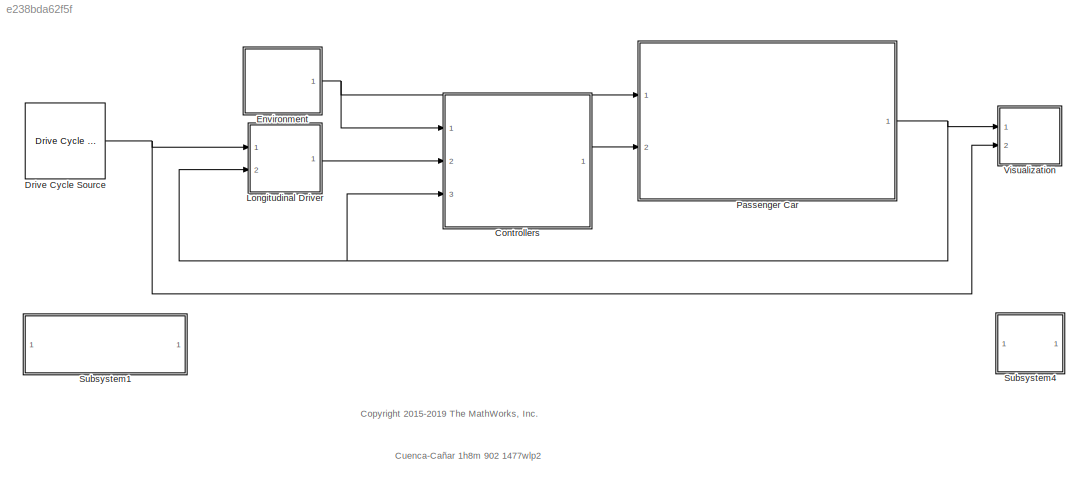
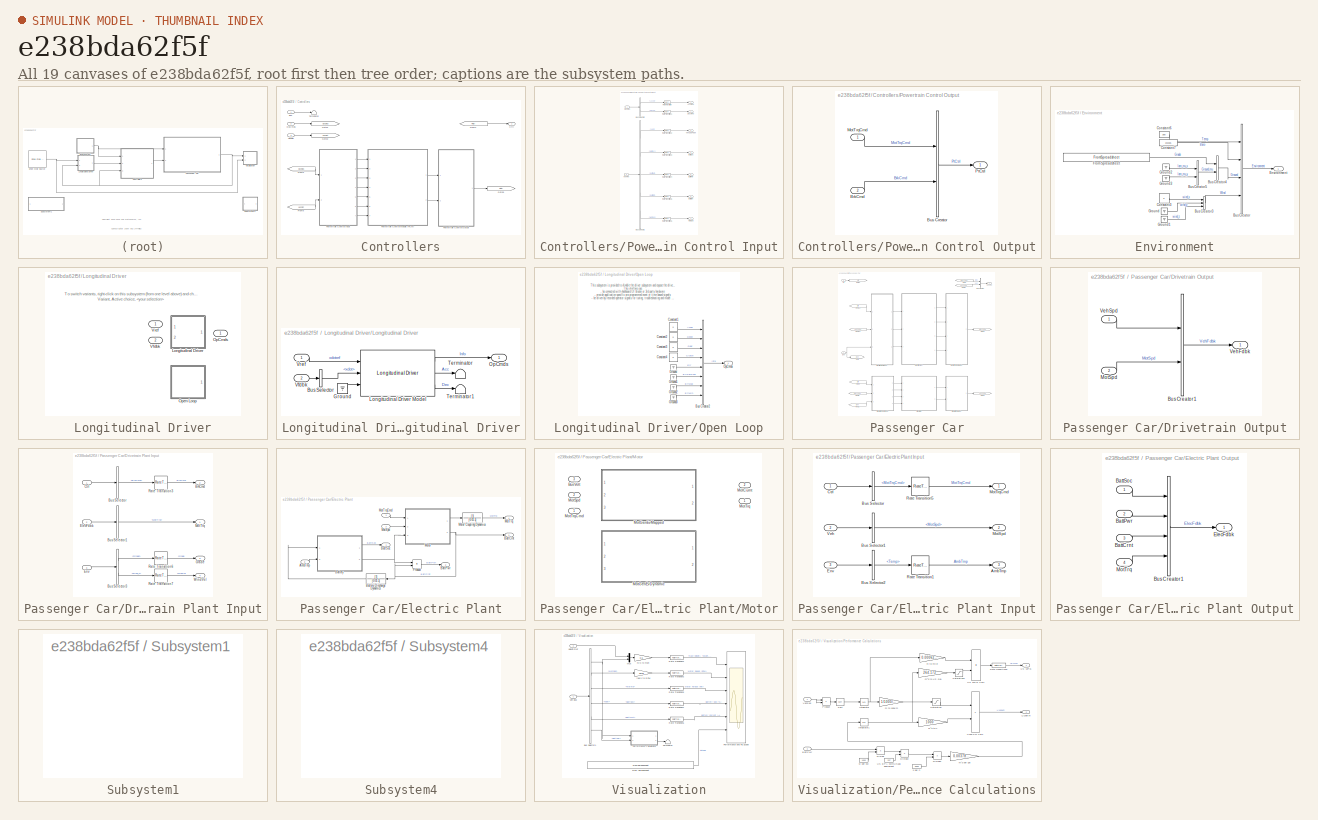
[diagram: thumbnail index - all 19 canvases of the model, root first then tree order]
MODEL slx_e238bda62f5f
KIND model
CONFIG AbsTol = auto
CONFIG EnableMultiTasking = off
CONFIG FixedStep = auto
CONFIG MaxStep = auto
CONFIG MinStep = auto
CONFIG RelTol = 1e-3
CONFIG SampleTimeConstraint = Unconstrained
CONFIG Solver = VariableStepAuto
CONFIG SolverName = VariableStepAuto
CONFIG StartTime = 0.0
CONFIG StopTime = 10.0
BLOCK [SubSystem] Controllers
  Ports = [3, 1]
  RequestExecContextInheritance = off
BLOCK [Outport] Controllers/Ctrl
  VectorParamsAs1DForOutWhenUnconnected = off
BLOCK [Inport] Controllers/Env
BLOCK [From] Controllers/From2
  GotoTag = PtCtrl
BLOCK [From] Controllers/From5
  GotoTag = OpCmds
BLOCK [From] Controllers/From6
  GotoTag = VehPlnt
BLOCK [Goto] Controllers/Goto1
  GotoTag = OpCmds
BLOCK [Goto] Controllers/Goto2
  GotoTag = VehPlnt
BLOCK [Goto] Controllers/Goto9
  GotoTag = PtCtrl
BLOCK [Inport] Controllers/OpCmds
  Port = 2
BLOCK [SubSystem] Controllers/Powertrain Control Input
  Ports = [2, 7]
  RequestExecContextInheritance = off
BLOCK [Outport] Controllers/Powertrain Control Input/AccelPdl
  VectorParamsAs1DForOutWhenUnconnected = off
BLOCK [Outport] Controllers/Powertrain Control Input/BattCrnt
  Port = 6
  VectorParamsAs1DForOutWhenUnconnected = off
BLOCK [Outport] Controllers/Powertrain Control Input/BattPwr
  Port = 5
  VectorParamsAs1DForOutWhenUnconnected = off
BLOCK [Outport] Controllers/Powertrain Control Input/BattSoc
  Port = 4
  VectorParamsAs1DForOutWhenUnconnected = off
BLOCK [BusSelector] Controllers/Powertrain Control Input/Bus Selector1
  OutputSignals = Veh.xdot,Elec.BattSoc,Elec.BattPwr,Elec.BattCrnt,Veh.MotSpd
  Ports = [1, 5]
BLOCK [BusSelector] Controllers/Powertrain Control Input/Bus Selector2
  OutputSignals = Accel,Decel
  Ports = [1, 2]
BLOCK [Outport] Controllers/Powertrain Control Input/DecelPdl
  Port = 2
  VectorParamsAs1DForOutWhenUnconnected = off
BLOCK [Outport] Controllers/Powertrain Control Input/MotSpd
  Port = 7
  VectorParamsAs1DForOutWhenUnconnected = off
BLOCK [Inport] Controllers/Powertrain Control Input/OpCmds
BLOCK [RateTransition] Controllers/Powertrain Control Input/Rate Transition
  Deterministic = off
BLOCK [RateTransition] Controllers/Powertrain Control Input/Rate Transition1
  Deterministic = off
BLOCK [RateTransition] Controllers/Powertrain Control Input/Rate Transition2
  Deterministic = off
BLOCK [RateTransition] Controllers/Powertrain Control Input/Rate Transition3
  Deterministic = off
BLOCK [RateTransition] Controllers/Powertrain Control Input/Rate Transition4
  Deterministic = off
BLOCK [RateTransition] Controllers/Powertrain Control Input/Rate Transition5
  Deterministic = off
BLOCK [RateTransition] Controllers/Powertrain Control Input/Rate Transition6
  Deterministic = off
BLOCK [Inport] Controllers/Powertrain Control Input/VehPlnt
  Port = 2
BLOCK [Outport] Controllers/Powertrain Control Input/VehSpdFdbk
  Port = 3
  VectorParamsAs1DForOutWhenUnconnected = off
BLOCK [ModelReference] Controllers/Powertrain Control Module (PCM)
  ModelNameDialog = EvPowertrainController.slx
  ModelReferenceVersion = 1.415
  Ports = [7, 2]
BLOCK [SubSystem] Controllers/Powertrain Control Output
  Ports = [2, 1]
  RequestExecContextInheritance = off
BLOCK [Inport] Controllers/Powertrain Control Output/BrkCmd
  Port = 2
BLOCK [BusCreator] Controllers/Powertrain Control Output/Bus Creator
  DisplayOption = bar
  InheritFromInputs = on
  Inputs = 2
  Ports = [2, 1]
BLOCK [Inport] Controllers/Powertrain Control Output/MotTrqCmd
BLOCK [Outport] Controllers/Powertrain Control Output/PtCtrl
  VectorParamsAs1DForOutWhenUnconnected = off
BLOCK [Terminator] Controllers/Terminator
BLOCK [Inport] Controllers/VehPlnt
  Port = 3
BLOCK [Reference] Drive Cycle Source  REF=autolibshared/Drive Cycle Source
  AttributesFormatString = %<cycleVar> (%<tfinal>)
  Ports = [0, 1]
  SourceBlock = autolibshared/Drive Cycle Source
  SourceProductBaseCode = PW,MT,VE,VP
  SourceType = Drive Cycle Source
BLOCK [SubSystem] Environment
  Ports = [0, 1]
  RequestExecContextInheritance = off
BLOCK [BusCreator] Environment/Bus Creator
  DisplayOption = bar
  InheritFromInputs = on
  Inputs = 4
  Ports = [4, 1]
BLOCK [BusCreator] Environment/Bus Creator3
  DisplayOption = bar
  InheritFromInputs = on
  Inputs = 3
  Ports = [3, 1]
BLOCK [BusCreator] Environment/Bus Creator4
  DisplayOption = bar
  InheritFromInputs = on
  Inputs = 2
  Ports = [2, 1]
BLOCK [BusCreator] Environment/Bus Creator5
  DisplayOption = bar
  InheritFromInputs = on
  Inputs = 2
  Ports = [2, 1]
BLOCK [Constant] Environment/Constant3
  Value = 0
BLOCK [Constant] Environment/Constant6
  Value = 300
BLOCK [Constant] Environment/Constant7
  Value = 101325
BLOCK [Outport] Environment/Environment
  VectorParamsAs1DForOutWhenUnconnected = off
BLOCK [FromSpreadsheet] Environment/From Spreadsheet
  FileName = <userpath>\Desktop\test\fromstaisabeltocentrosur.xlsx
  Ports = [0, 1]
BLOCK [Ground] Environment/Ground
BLOCK [Ground] Environment/Ground1
BLOCK [Ground] Environment/Ground2
BLOCK [Ground] Environment/Ground3
BLOCK [SubSystem] Longitudinal Driver
  LabelModeActiveChoice = 0
  Ports = [2, 1]
  RequestExecContextInheritance = off
  Variant = on
  VariantControl = Variant1
  VariantControlMode = Label
BLOCK [Outport] Longitudinal Driver/ OpCmds
  VectorParamsAs1DForOutWhenUnconnected = off
BLOCK [SubSystem] Longitudinal Driver/Longitudinal Driver
  Ports = [2, 1]
  RequestExecContextInheritance = off
  VariantControl = 0
BLOCK [BusSelector] Longitudinal Driver/Longitudinal Driver/Bus Selector
  OutputSignals = Veh.xdot
  Ports = [1, 1]
BLOCK [Ground] Longitudinal Driver/Longitudinal Driver/Ground
BLOCK [Reference] Longitudinal Driver/Longitudinal Driver/Longitudinal Driver Model  REF=autolibshared/Longitudinal Driver
  Ports = [3, 3]
  SourceBlock = autolibshared/Longitudinal Driver
  SourceProductBaseCode = PW,MT,VE,VP
  SourceType = Longitudinal Driver
BLOCK [Outport] Longitudinal Driver/Longitudinal Driver/OpCmds
  VectorParamsAs1DForOutWhenUnconnected = off
BLOCK [Terminator] Longitudinal Driver/Longitudinal Driver/Terminator
BLOCK [Terminator] Longitudinal Driver/Longitudinal Driver/Terminator1
BLOCK [Inport] Longitudinal Driver/Longitudinal Driver/Vfdbk
  Port = 2
BLOCK [Inport] Longitudinal Driver/Longitudinal Driver/Vref
BLOCK [SubSystem] Longitudinal Driver/Open Loop
  Ports = [0, 1]
  RequestExecContextInheritance = off
  VariantControl = 1
BLOCK [BusCreator] Longitudinal Driver/Open Loop/Bus Creator2
  DisplayOption = bar
  InheritFromInputs = on
  Inputs = 8
  Ports = [8, 1]
BLOCK [Constant] Longitudinal Driver/Open Loop/Constant1
  Value = 0
BLOCK [Constant] Longitudinal Driver/Open Loop/Constant2
  Value = 0
BLOCK [Constant] Longitudinal Driver/Open Loop/Constant3
  Value = 0
BLOCK [Constant] Longitudinal Driver/Open Loop/Constant4
  Value = 0
BLOCK [Ground] Longitudinal Driver/Open Loop/Ground
BLOCK [Ground] Longitudinal Driver/Open Loop/Ground1
BLOCK [Ground] Longitudinal Driver/Open Loop/Ground2
BLOCK [Ground] Longitudinal Driver/Open Loop/Ground3
BLOCK [Outport] Longitudinal Driver/Open Loop/OpCmds
  VectorParamsAs1DForOutWhenUnconnected = off
BLOCK [Inport] Longitudinal Driver/Vfdbk 
  Port = 2
BLOCK [Inport] Longitudinal Driver/Vref 
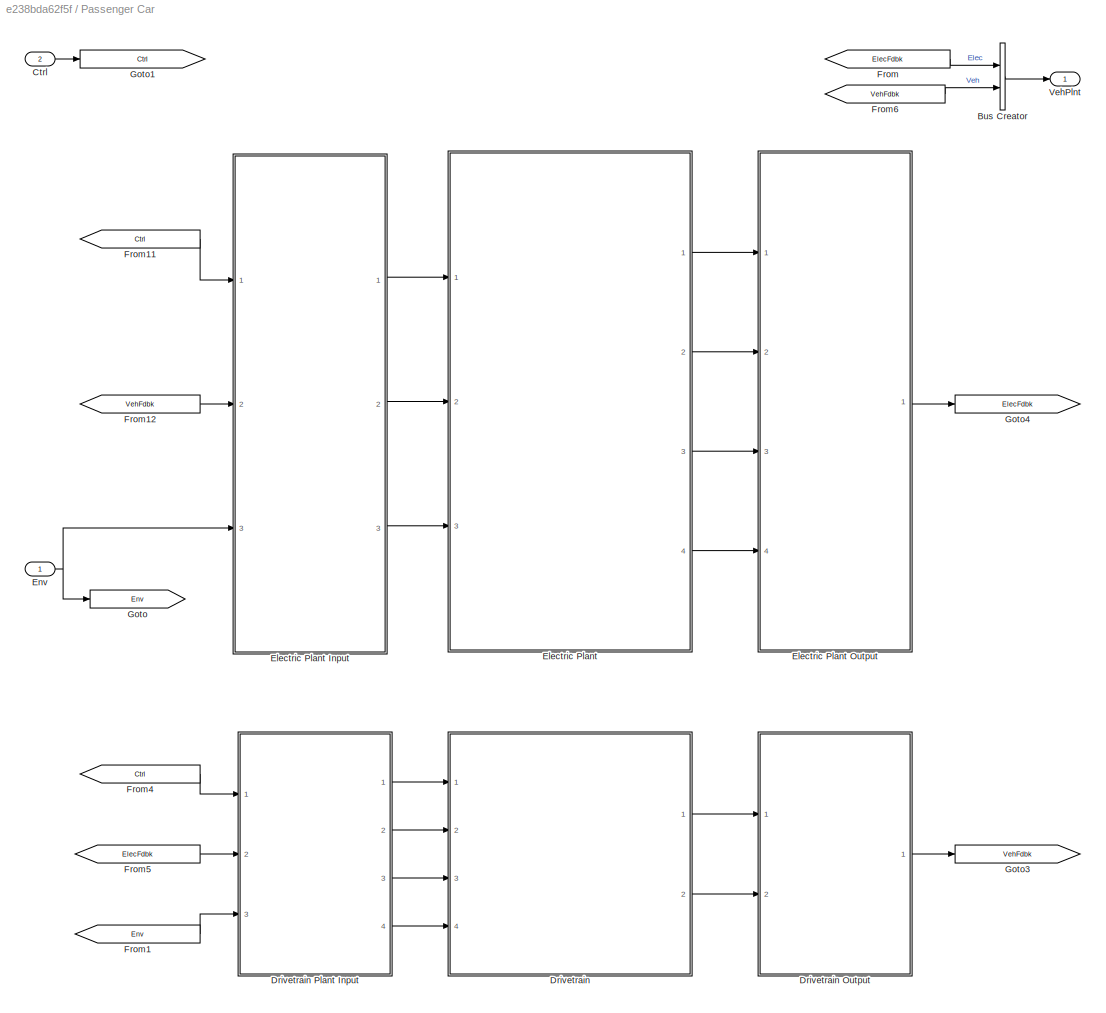
BLOCK [SubSystem] Passenger Car
  Ports = [2, 1]
  RequestExecContextInheritance = off
BLOCK [BusCreator] Passenger Car/Bus Creator
  DisplayOption = bar
  InheritFromInputs = on
  Inputs = 2
  Ports = [2, 1]
BLOCK [Inport] Passenger Car/Ctrl
  Port = 2
BLOCK [ModelReference] Passenger Car/Drivetrain
  ModelNameDialog = DrivetrainEv.slx
  ModelReferenceVersion = 1.455
  Ports = [4, 2]
BLOCK [SubSystem] Passenger Car/Drivetrain Output
  Ports = [2, 1]
  RequestExecContextInheritance = off
BLOCK [BusCreator] Passenger Car/Drivetrain Output/Bus Creator1
  DisplayOption = bar
  InheritFromInputs = on
  Inputs = 2
  Ports = [2, 1]
BLOCK [Inport] Passenger Car/Drivetrain Output/MotSpd
  Port = 2
BLOCK [Outport] Passenger Car/Drivetrain Output/VehFdbk
  VectorParamsAs1DForOutWhenUnconnected = off
BLOCK [Inport] Passenger Car/Drivetrain Output/VehSpd
BLOCK [SubSystem] Passenger Car/Drivetrain Plant Input
  Ports = [3, 4]
  RequestExecContextInheritance = off
BLOCK [Outport] Passenger Car/Drivetrain Plant Input/BrkCmd
  Port = 2
  VectorParamsAs1DForOutWhenUnconnected = off
BLOCK [BusSelector] Passenger Car/Drivetrain Plant Input/Bus Selector
  OutputSignals = BrkCmd
  Ports = [1, 1]
BLOCK [BusSelector] Passenger Car/Drivetrain Plant Input/Bus Selector1
  OutputSignals = MotTrq
  Ports = [1, 1]
BLOCK [BusSelector] Passenger Car/Drivetrain Plant Input/Bus Selector3
  OutputSignals = Ground.Grade,Wind.wind_x
  Ports = [1, 2]
BLOCK [Inport] Passenger Car/Drivetrain Plant Input/Ctrl
BLOCK [Inport] Passenger Car/Drivetrain Plant Input/ElecFdbk
  Port = 2
BLOCK [Inport] Passenger Car/Drivetrain Plant Input/Env
  Port = 3
BLOCK [Outport] Passenger Car/Drivetrain Plant Input/Grade
  Port = 3
  VectorParamsAs1DForOutWhenUnconnected = off
BLOCK [Outport] Passenger Car/Drivetrain Plant Input/MotTrq
  VectorParamsAs1DForOutWhenUnconnected = off
BLOCK [RateTransition] Passenger Car/Drivetrain Plant Input/Rate Transition3
  Deterministic = off
BLOCK [RateTransition] Passenger Car/Drivetrain Plant Input/Rate Transition6
  Deterministic = off
BLOCK [RateTransition] Passenger Car/Drivetrain Plant Input/Rate Transition7
  Deterministic = off
BLOCK [Outport] Passenger Car/Drivetrain Plant Input/WindVel
  Port = 4
  VectorParamsAs1DForOutWhenUnconnected = off
BLOCK [SubSystem] Passenger Car/Electric Plant
  Ports = [3, 4]
  RequestExecContextInheritance = off
BLOCK [SubSystem] Passenger Car/Electric Plant Input
  Ports = [3, 3]
  RequestExecContextInheritance = off
BLOCK [Outport] Passenger Car/Electric Plant Input/AmbTmp
  Port = 3
  VectorParamsAs1DForOutWhenUnconnected = off
BLOCK [BusSelector] Passenger Car/Electric Plant Input/Bus Selector
  OutputSignals = MotTrqCmd
  Ports = [1, 1]
BLOCK [BusSelector] Passenger Car/Electric Plant Input/Bus Selector1
  OutputSignals = MotSpd
  Ports = [1, 1]
BLOCK [BusSelector] Passenger Car/Electric Plant Input/Bus Selector2
  OutputSignals = Temp
  Ports = [1, 1]
BLOCK [Inport] Passenger Car/Electric Plant Input/Ctrl
BLOCK [Inport] Passenger Car/Electric Plant Input/Env
  Port = 3
BLOCK [Outport] Passenger Car/Electric Plant Input/MotSpd
  Port = 2
  VectorParamsAs1DForOutWhenUnconnected = off
BLOCK [Outport] Passenger Car/Electric Plant Input/MotTrqCmd
  VectorParamsAs1DForOutWhenUnconnected = off
BLOCK [RateTransition] Passenger Car/Electric Plant Input/Rate Transition1
  Deterministic = off
BLOCK [RateTransition] Passenger Car/Electric Plant Input/Rate Transition5
  Deterministic = off
BLOCK [Inport] Passenger Car/Electric Plant Input/Veh
  Port = 2
BLOCK [SubSystem] Passenger Car/Electric Plant Output
  Ports = [4, 1]
  RequestExecContextInheritance = off
BLOCK [Inport] Passenger Car/Electric Plant Output/BattCrnt
  Port = 3
BLOCK [Inport] Passenger Car/Electric Plant Output/BattPwr
  Port = 2
BLOCK [Inport] Passenger Car/Electric Plant Output/BattSoc
BLOCK [BusCreator] Passenger Car/Electric Plant Output/Bus Creator1
  DisplayOption = bar
  InheritFromInputs = on
  Inputs = 4
  Ports = [4, 1]
BLOCK [Outport] Passenger Car/Electric Plant Output/ElecFdbk
  VectorParamsAs1DForOutWhenUnconnected = off
BLOCK [Inport] Passenger Car/Electric Plant Output/MotTrq
  Port = 4
BLOCK [Inport] Passenger Car/Electric Plant/AmbTmp
  Port = 3
BLOCK [Outport] Passenger Car/Electric Plant/BattCrnt
  Port = 3
  VectorParamsAs1DForOutWhenUnconnected = off
BLOCK [Outport] Passenger Car/Electric Plant/BattPwr
  Port = 2
  VectorParamsAs1DForOutWhenUnconnected = off
BLOCK [Outport] Passenger Car/Electric Plant/BattSoc
  VectorParamsAs1DForOutWhenUnconnected = off
BLOCK [ModelReference] Passenger Car/Electric Plant/Battery
  ModelNameDialog = BattEv.slx
  ModelReferenceVersion = 1.704
  Ports = [2, 2]
BLOCK [TransferFcn] Passenger Car/Electric Plant/Battery Discharge Dynamics
  Denominator = [0.01 1]
BLOCK [Inport] Passenger Car/Electric Plant/MotSpd
  Port = 2
BLOCK [Outport] Passenger Car/Electric Plant/MotTrq
  Port = 4
  VectorParamsAs1DForOutWhenUnconnected = off
BLOCK [Inport] Passenger Car/Electric Plant/MotTrqCmd
BLOCK [SubSystem] Passenger Car/Electric Plant/Motor
  LabelModeActiveChoice = MotGenEvMapped
  Ports = [3, 2]
  RequestExecContextInheritance = off
  Variant = on
  VariantControlMode = Label
BLOCK [TransferFcn] Passenger Car/Electric Plant/Motor Coupling Dynamics
  Denominator = [0.01 1]
BLOCK [Inport] Passenger Car/Electric Plant/Motor/BusVolt
  Port = 3
BLOCK [Outport] Passenger Car/Electric Plant/Motor/MotCurnt
  Port = 2
  VectorParamsAs1DForOutWhenUnconnected = off
BLOCK [ModelReference] Passenger Car/Electric Plant/Motor/MotGenEvDynamic
  ModelNameDialog = MotGenEvDynamic.slx
  ModelReferenceVersion = 1.354
  Ports = [3, 2]
  VariantControl = MotGenEvDynamic
BLOCK [ModelReference] Passenger Car/Electric Plant/Motor/MotGenEvMapped
  ModelNameDialog = MotGenEvMapped.slx
  ModelReferenceVersion = 1.356
  Ports = [3, 2]
  VariantControl = MotGenEvMapped
BLOCK [Inport] Passenger Car/Electric Plant/Motor/MotSpd
  Port = 2
BLOCK [Outport] Passenger Car/Electric Plant/Motor/MotTrq
  VectorParamsAs1DForOutWhenUnconnected = off
BLOCK [Inport] Passenger Car/Electric Plant/Motor/MotTrqCmd
BLOCK [Product] Passenger Car/Electric Plant/Product
  Ports = [2, 1]
BLOCK [Inport] Passenger Car/Env
BLOCK [From] Passenger Car/From
  GotoTag = ElecFdbk
BLOCK [From] Passenger Car/From1
  GotoTag = Env
BLOCK [From] Passenger Car/From11
  GotoTag = Ctrl
BLOCK [From] Passenger Car/From12
  GotoTag = VehFdbk
BLOCK [From] Passenger Car/From4
  GotoTag = Ctrl
BLOCK [From] Passenger Car/From5
  GotoTag = ElecFdbk
BLOCK [From] Passenger Car/From6
  GotoTag = VehFdbk
BLOCK [Goto] Passenger Car/Goto
  GotoTag = Env
BLOCK [Goto] Passenger Car/Goto1
  GotoTag = Ctrl
BLOCK [Goto] Passenger Car/Goto3
  GotoTag = VehFdbk
BLOCK [Goto] Passenger Car/Goto4
  GotoTag = ElecFdbk
BLOCK [Outport] Passenger Car/VehPlnt
  VectorParamsAs1DForOutWhenUnconnected = off
BLOCK [SubSystem] Subsystem1
  OpenFcn = edit GenerateEnergyReport
  Ports = []
  RequestExecContextInheritance = off
BLOCK [SubSystem] Subsystem4
  OpenFcn = helpview([docroot,'/toolbox/autoblks/helptargets.map'], 'ev_refapp')
  Ports = []
  RequestExecContextInheritance = off
BLOCK [SubSystem] Visualization
  Ports = [2]
  RequestExecContextInheritance = off
BLOCK [BusSelector] Visualization/Bus Selector1
  OutputSignals = Veh.xdot,Veh.MotSpd,Elec.MotTrq,Elec.BattSoc,Elec.BattCrnt,Elec.BattPwr
  Ports = [1, 6]
BLOCK [FromSpreadsheet] Visualization/From Spreadsheet
  FileName = <userpath>\Desktop\test\altitudefromstaisabeltocentrosur.xlsx
  Ports = [0, 1]
BLOCK [Mux] Visualization/Mux
  DisplayOption = bar
  Inputs = 2
  Ports = [2, 1]
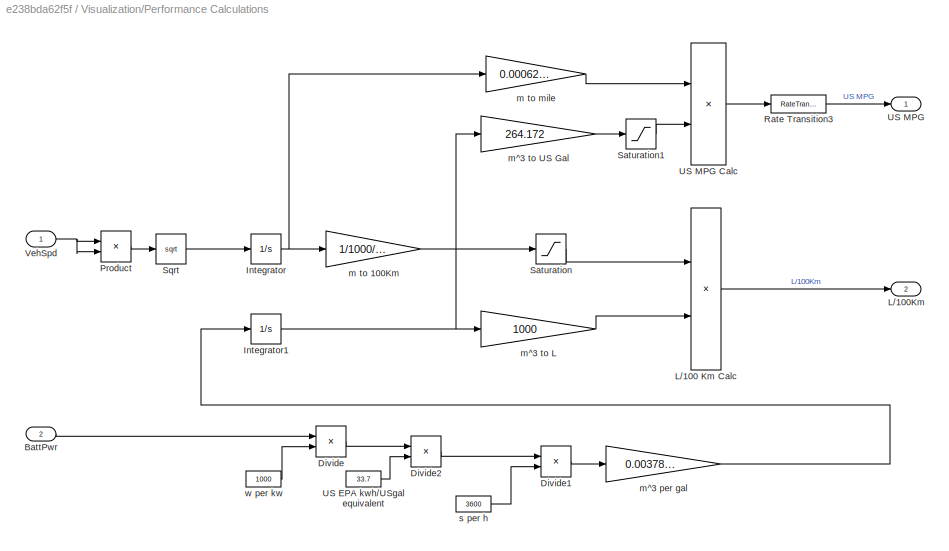
BLOCK [SubSystem] Visualization/Performance Calculations
  Ports = [2, 2]
  RequestExecContextInheritance = off
BLOCK [Inport] Visualization/Performance Calculations/BattPwr
  Port = 2
BLOCK [Product] Visualization/Performance Calculations/Divide
  Inputs = */
  Ports = [2, 1]
BLOCK [Product] Visualization/Performance Calculations/Divide1
  Inputs = */
  Ports = [2, 1]
BLOCK [Product] Visualization/Performance Calculations/Divide2
  Inputs = */
  Ports = [2, 1]
BLOCK [Integrator] Visualization/Performance Calculations/Integrator
  Ports = [1, 1]
BLOCK [Integrator] Visualization/Performance Calculations/Integrator1
  Ports = [1, 1]
BLOCK [Product] Visualization/Performance Calculations/L//100 Km Calc
  Inputs = /*
  Ports = [2, 1]
BLOCK [Outport] Visualization/Performance Calculations/L//100Km
  Port = 2
  VectorParamsAs1DForOutWhenUnconnected = off
BLOCK [Product] Visualization/Performance Calculations/Product
  Ports = [2, 1]
BLOCK [RateTransition] Visualization/Performance Calculations/Rate Transition3
  Deterministic = off
BLOCK [Saturate] Visualization/Performance Calculations/Saturation
  LowerLimit = 0.001
  UpperLimit = Inf
BLOCK [Saturate] Visualization/Performance Calculations/Saturation1
  LowerLimit = 1e-3
  UpperLimit = Inf
BLOCK [Sqrt] Visualization/Performance Calculations/Sqrt
BLOCK [Constant] Visualization/Performance Calculations/US EPA kwh//USgal equivalent
  Value = 33.7
BLOCK [Outport] Visualization/Performance Calculations/US MPG
  VectorParamsAs1DForOutWhenUnconnected = off
BLOCK [Product] Visualization/Performance Calculations/US MPG Calc
  Inputs = */
  Ports = [2, 1]
BLOCK [Inport] Visualization/Performance Calculations/VehSpd
BLOCK [Gain] Visualization/Performance Calculations/m to 100Km
  Gain = 1/1000/100
BLOCK [Gain] Visualization/Performance Calculations/m to mile
  Gain = 0.000621371
BLOCK [Gain] Visualization/Performance Calculations/m^3 per gal
  Gain = 0.00378541
BLOCK [Gain] Visualization/Performance Calculations/m^3 to L
  Gain = 1000
BLOCK [Gain] Visualization/Performance Calculations/m^3 to US Gal
  Gain = 264.172
BLOCK [Constant] Visualization/Performance Calculations/s per h
  Value = 3600
BLOCK [Constant] Visualization/Performance Calculations/w per kw
  Value = 1000
BLOCK [Scope] Visualization/Performance and FE Scope
  Floating = off
  NumInputPorts = 6
  Ports = [6]
  ScopeSpecificationString = Simulink.scopes.TimeScopeBlockCfg('CurrentConfiguration', extmgr.ConfigurationSet(extmgr.Configuration('Core','General UI',true),extmgr.Configuration('Core','Source UI',true),extmgr.Configuration('Sources','WiredSimulink',true,'SampleTime','0.1'),extmgr.Configuration('Visuals','Time Domain',true,'SerializedDisplays',{struct('MinYLimReal','-365.81645','MaxYLimReal','486.64627','YLabelReal','','MinY...<+5312ch>
BLOCK [RateTransition] Visualization/Rate Transition1
  Deterministic = off
BLOCK [RateTransition] Visualization/Rate Transition2
  Deterministic = off
BLOCK [RateTransition] Visualization/Rate Transition4
  Deterministic = off
BLOCK [RateTransition] Visualization/Rate Transition5
  Deterministic = off
BLOCK [RateTransition] Visualization/Rate Transition6
  Deterministic = off
BLOCK [Terminator] Visualization/Terminator
BLOCK [Inport] Visualization/Veh Bus
BLOCK [Inport] Visualization/VelocityRef
  Port = 2
BLOCK [Gain] Visualization/m//s to mph
  Gain = 3.6
BLOCK [Gain] Visualization/rad//s to RPM
  Gain = 30/pi
ANNOTATION (root): <copyright redacted>
ANNOTATION (root): Cuenca-Cañar 1h8m 902 1477wlp2
ANNOTATION Longitudinal Driver: To switch variants, right-click on this subsystem (from one level above) and chose: Variant, Active choice,
ANNOTATION Longitudinal Driver/Open Loop: This subsystem is provided to disable the driver subsystem and expose the driver interface. The interface can: - be connected with dashboard UI blocks or 3rd party hardware - provide application specific pre-programmed event or time based signals - be driven by recorded operator signals for tuning, troubleshooting and model validation
LINE Controllers/Env:1 -> Controllers/Terminator:1
LINE Controllers/From2:1 -> Controllers/Ctrl:1
LINE Controllers/From5:1 -> Controllers/Powertrain Control Input:1
LINE Controllers/From6:1 -> Controllers/Powertrain Control Input:2
LINE Controllers/OpCmds:1 -> Controllers/Goto1:1
LINE Controllers/Powertrain Control Input/Bus Selector1:1 -> Controllers/Powertrain Control Input/Rate Transition2:1
LINE Controllers/Powertrain Control Input/Bus Selector1:2 -> Controllers/Powertrain Control Input/Rate Transition3:1
LINE Controllers/Powertrain Control Input/Bus Selector1:3 -> Controllers/Powertrain Control Input/Rate Transition4:1
LINE Controllers/Powertrain Control Input/Bus Selector1:4 -> Controllers/Powertrain Control Input/Rate Transition5:1
LINE Controllers/Powertrain Control Input/Bus Selector1:5 -> Controllers/Powertrain Control Input/Rate Transition6:1
LINE Controllers/Powertrain Control Input/Bus Selector2:1 -> Controllers/Powertrain Control Input/Rate Transition:1
LINE Controllers/Powertrain Control Input/Bus Selector2:2 -> Controllers/Powertrain Control Input/Rate Transition1:1
LINE Controllers/Powertrain Control Input/OpCmds:1 -> Controllers/Powertrain Control Input/Bus Selector2:1
LINE Controllers/Powertrain Control Input/Rate Transition1:1 -> Controllers/Powertrain Control Input/DecelPdl:1
LINE Controllers/Powertrain Control Input/Rate Transition2:1 -> Controllers/Powertrain Control Input/VehSpdFdbk:1
LINE Controllers/Powertrain Control Input/Rate Transition3:1 -> Controllers/Powertrain Control Input/BattSoc:1
LINE Controllers/Powertrain Control Input/Rate Transition4:1 -> Controllers/Powertrain Control Input/BattPwr:1
LINE Controllers/Powertrain Control Input/Rate Transition5:1 -> Controllers/Powertrain Control Input/BattCrnt:1
LINE Controllers/Powertrain Control Input/Rate Transition6:1 -> Controllers/Powertrain Control Input/MotSpd:1
LINE Controllers/Powertrain Control Input/Rate Transition:1 -> Controllers/Powertrain Control Input/AccelPdl:1
LINE Controllers/Powertrain Control Input/VehPlnt:1 -> Controllers/Powertrain Control Input/Bus Selector1:1
LINE Controllers/Powertrain Control Input:1 -> Controllers/Powertrain Control Module (PCM):1
LINE Controllers/Powertrain Control Input:2 -> Controllers/Powertrain Control Module (PCM):2
LINE Controllers/Powertrain Control Input:3 -> Controllers/Powertrain Control Module (PCM):3
LINE Controllers/Powertrain Control Input:4 -> Controllers/Powertrain Control Module (PCM):4
LINE Controllers/Powertrain Control Input:5 -> Controllers/Powertrain Control Module (PCM):5
LINE Controllers/Powertrain Control Input:6 -> Controllers/Powertrain Control Module (PCM):6
LINE Controllers/Powertrain Control Input:7 -> Controllers/Powertrain Control Module (PCM):7
LINE Controllers/Powertrain Control Module (PCM):1 -> Controllers/Powertrain Control Output:1
LINE Controllers/Powertrain Control Module (PCM):2 -> Controllers/Powertrain Control Output:2
LINE Controllers/Powertrain Control Output/BrkCmd:1 -> Controllers/Powertrain Control Output/Bus Creator:2
LINE Controllers/Powertrain Control Output/Bus Creator:1 -> Controllers/Powertrain Control Output/PtCtrl:1
LINE Controllers/Powertrain Control Output/MotTrqCmd:1 -> Controllers/Powertrain Control Output/Bus Creator:1
LINE Controllers/Powertrain Control Output:1 -> Controllers/Goto9:1
LINE Controllers/VehPlnt:1 -> Controllers/Goto2:1
LINE Controllers:1 -> Passenger Car:2
NET Drive Cycle Source:1 -> Longitudinal Driver:1, Visualization:2
LINE Environment/Bus Creator3:1 -> Environment/Bus Creator:4
LINE Environment/Bus Creator4:1 -> Environment/Bus Creator:3
LINE Environment/Bus Creator5:1 -> Environment/Bus Creator4:2
LINE Environment/Bus Creator:1 -> Environment/Environment:1
LINE Environment/Constant3:1 -> Environment/Bus Creator3:1
LINE Environment/Constant6:1 -> Environment/Bus Creator:1
LINE Environment/Constant7:1 -> Environment/Bus Creator:2
LINE Environment/From Spreadsheet:1 -> Environment/Bus Creator4:1
LINE Environment/Ground1:1 -> Environment/Bus Creator3:3
LINE Environment/Ground2:1 -> Environment/Bus Creator5:1
LINE Environment/Ground3:1 -> Environment/Bus Creator5:2
LINE Environment/Ground:1 -> Environment/Bus Creator3:2
NET Environment:1 -> Controllers:1, Passenger Car:1
LINE Longitudinal Driver/Longitudinal Driver/Bus Selector:1 -> Longitudinal Driver/Longitudinal Driver/Longitudinal Driver Model:2
LINE Longitudinal Driver/Longitudinal Driver/Ground:1 -> Longitudinal Driver/Longitudinal Driver/Longitudinal Driver Model:3
LINE Longitudinal Driver/Longitudinal Driver/Longitudinal Driver Model:1 -> Longitudinal Driver/Longitudinal Driver/OpCmds:1
LINE Longitudinal Driver/Longitudinal Driver/Longitudinal Driver Model:2 -> Longitudinal Driver/Longitudinal Driver/Terminator:1
LINE Longitudinal Driver/Longitudinal Driver/Longitudinal Driver Model:3 -> Longitudinal Driver/Longitudinal Driver/Terminator1:1
LINE Longitudinal Driver/Longitudinal Driver/Vfdbk:1 -> Longitudinal Driver/Longitudinal Driver/Bus Selector:1
LINE Longitudinal Driver/Longitudinal Driver/Vref:1 -> Longitudinal Driver/Longitudinal Driver/Longitudinal Driver Model:1
LINE Longitudinal Driver/Open Loop/Bus Creator2:1 -> Longitudinal Driver/Open Loop/OpCmds:1
LINE Longitudinal Driver/Open Loop/Constant1:1 -> Longitudinal Driver/Open Loop/Bus Creator2:1
LINE Longitudinal Driver/Open Loop/Constant2:1 -> Longitudinal Driver/Open Loop/Bus Creator2:2
LINE Longitudinal Driver/Open Loop/Constant3:1 -> Longitudinal Driver/Open Loop/Bus Creator2:3
LINE Longitudinal Driver/Open Loop/Constant4:1 -> Longitudinal Driver/Open Loop/Bus Creator2:4
LINE Longitudinal Driver/Open Loop/Ground1:1 -> Longitudinal Driver/Open Loop/Bus Creator2:6
LINE Longitudinal Driver/Open Loop/Ground2:1 -> Longitudinal Driver/Open Loop/Bus Creator2:7
LINE Longitudinal Driver/Open Loop/Ground3:1 -> Longitudinal Driver/Open Loop/Bus Creator2:8
LINE Longitudinal Driver/Open Loop/Ground:1 -> Longitudinal Driver/Open Loop/Bus Creator2:5
LINE Longitudinal Driver:1 -> Controllers:2
LINE Passenger Car/Bus Creator:1 -> Passenger Car/VehPlnt:1
LINE Passenger Car/Ctrl:1 -> Passenger Car/Goto1:1
LINE Passenger Car/Drivetrain Output/Bus Creator1:1 -> Passenger Car/Drivetrain Output/VehFdbk:1
LINE Passenger Car/Drivetrain Output/MotSpd:1 -> Passenger Car/Drivetrain Output/Bus Creator1:2
LINE Passenger Car/Drivetrain Output/VehSpd:1 -> Passenger Car/Drivetrain Output/Bus Creator1:1
LINE Passenger Car/Drivetrain Output:1 -> Passenger Car/Goto3:1
LINE Passenger Car/Drivetrain Plant Input/Bus Selector1:1 -> Passenger Car/Drivetrain Plant Input/MotTrq:1
LINE Passenger Car/Drivetrain Plant Input/Bus Selector3:1 -> Passenger Car/Drivetrain Plant Input/Rate Transition6:1
LINE Passenger Car/Drivetrain Plant Input/Bus Selector3:2 -> Passenger Car/Drivetrain Plant Input/Rate Transition7:1
LINE Passenger Car/Drivetrain Plant Input/Bus Selector:1 -> Passenger Car/Drivetrain Plant Input/Rate Transition3:1
LINE Passenger Car/Drivetrain Plant Input/Ctrl:1 -> Passenger Car/Drivetrain Plant Input/Bus Selector:1
LINE Passenger Car/Drivetrain Plant Input/ElecFdbk:1 -> Passenger Car/Drivetrain Plant Input/Bus Selector1:1
LINE Passenger Car/Drivetrain Plant Input/Env:1 -> Passenger Car/Drivetrain Plant Input/Bus Selector3:1
LINE Passenger Car/Drivetrain Plant Input/Rate Transition3:1 -> Passenger Car/Drivetrain Plant Input/BrkCmd:1
LINE Passenger Car/Drivetrain Plant Input/Rate Transition6:1 -> Passenger Car/Drivetrain Plant Input/Grade:1
LINE Passenger Car/Drivetrain Plant Input/Rate Transition7:1 -> Passenger Car/Drivetrain Plant Input/WindVel:1
LINE Passenger Car/Drivetrain Plant Input:1 -> Passenger Car/Drivetrain:1
LINE Passenger Car/Drivetrain Plant Input:2 -> Passenger Car/Drivetrain:2
LINE Passenger Car/Drivetrain Plant Input:3 -> Passenger Car/Drivetrain:3
LINE Passenger Car/Drivetrain Plant Input:4 -> Passenger Car/Drivetrain:4
LINE Passenger Car/Drivetrain:1 -> Passenger Car/Drivetrain Output:1
LINE Passenger Car/Drivetrain:2 -> Passenger Car/Drivetrain Output:2
LINE Passenger Car/Electric Plant Input/Bus Selector1:1 -> Passenger Car/Electric Plant Input/MotSpd:1
LINE Passenger Car/Electric Plant Input/Bus Selector2:1 -> Passenger Car/Electric Plant Input/Rate Transition1:1
LINE Passenger Car/Electric Plant Input/Bus Selector:1 -> Passenger Car/Electric Plant Input/Rate Transition5:1
LINE Passenger Car/Electric Plant Input/Ctrl:1 -> Passenger Car/Electric Plant Input/Bus Selector:1
LINE Passenger Car/Electric Plant Input/Env:1 -> Passenger Car/Electric Plant Input/Bus Selector2:1
LINE Passenger Car/Electric Plant Input/Rate Transition1:1 -> Passenger Car/Electric Plant Input/AmbTmp:1
LINE Passenger Car/Electric Plant Input/Rate Transition5:1 -> Passenger Car/Electric Plant Input/MotTrqCmd:1
LINE Passenger Car/Electric Plant Input/Veh:1 -> Passenger Car/Electric Plant Input/Bus Selector1:1
LINE Passenger Car/Electric Plant Input:1 -> Passenger Car/Electric Plant:1
LINE Passenger Car/Electric Plant Input:2 -> Passenger Car/Electric Plant:2
LINE Passenger Car/Electric Plant Input:3 -> Passenger Car/Electric Plant:3
LINE Passenger Car/Electric Plant Output/BattCrnt:1 -> Passenger Car/Electric Plant Output/Bus Creator1:3
LINE Passenger Car/Electric Plant Output/BattPwr:1 -> Passenger Car/Electric Plant Output/Bus Creator1:2
LINE Passenger Car/Electric Plant Output/BattSoc:1 -> Passenger Car/Electric Plant Output/Bus Creator1:1
LINE Passenger Car/Electric Plant Output/Bus Creator1:1 -> Passenger Car/Electric Plant Output/ElecFdbk:1
LINE Passenger Car/Electric Plant Output/MotTrq:1 -> Passenger Car/Electric Plant Output/Bus Creator1:4
LINE Passenger Car/Electric Plant Output:1 -> Passenger Car/Goto4:1
LINE Passenger Car/Electric Plant/AmbTmp:1 -> Passenger Car/Electric Plant/Battery:2
LINE Passenger Car/Electric Plant/Battery Discharge Dynamics:1 -> Passenger Car/Electric Plant/Battery:1
LINE Passenger Car/Electric Plant/Battery:1 -> Passenger Car/Electric Plant/BattSoc:1
NET Passenger Car/Electric Plant/Battery:2 -> Passenger Car/Electric Plant/Motor:3, Passenger Car/Electric Plant/Product:1
LINE Passenger Car/Electric Plant/MotSpd:1 -> Passenger Car/Electric Plant/Motor:2
LINE Passenger Car/Electric Plant/MotTrqCmd:1 -> Passenger Car/Electric Plant/Motor:1
LINE Passenger Car/Electric Plant/Motor Coupling Dynamics:1 -> Passenger Car/Electric Plant/MotTrq:1
LINE Passenger Car/Electric Plant/Motor:1 -> Passenger Car/Electric Plant/Motor Coupling Dynamics:1
NET Passenger Car/Electric Plant/Motor:2 -> Passenger Car/Electric Plant/BattCrnt:1, Passenger Car/Electric Plant/Battery Discharge Dynamics:1, Passenger Car/Electric Plant/Product:2
LINE Passenger Car/Electric Plant/Product:1 -> Passenger Car/Electric Plant/BattPwr:1
LINE Passenger Car/Electric Plant:1 -> Passenger Car/Electric Plant Output:1
LINE Passenger Car/Electric Plant:2 -> Passenger Car/Electric Plant Output:2
LINE Passenger Car/Electric Plant:3 -> Passenger Car/Electric Plant Output:3
LINE Passenger Car/Electric Plant:4 -> Passenger Car/Electric Plant Output:4
NET Passenger Car/Env:1 -> Passenger Car/Electric Plant Input:3, Passenger Car/Goto:1
LINE Passenger Car/From11:1 -> Passenger Car/Electric Plant Input:1
LINE Passenger Car/From12:1 -> Passenger Car/Electric Plant Input:2
LINE Passenger Car/From1:1 -> Passenger Car/Drivetrain Plant Input:3
LINE Passenger Car/From4:1 -> Passenger Car/Drivetrain Plant Input:1
LINE Passenger Car/From5:1 -> Passenger Car/Drivetrain Plant Input:2
LINE Passenger Car/From6:1 -> Passenger Car/Bus Creator:2
LINE Passenger Car/From:1 -> Passenger Car/Bus Creator:1
NET Passenger Car:1 -> Controllers:3, Longitudinal Driver:2, Visualization:1
NET Visualization/Bus Selector1:1 -> Visualization/Mux:2, Visualization/Performance Calculations:1
LINE Visualization/Bus Selector1:2 -> Visualization/rad//s to RPM:1
LINE Visualization/Bus Selector1:3 -> Visualization/Rate Transition5:1
LINE Visualization/Bus Selector1:4 -> Visualization/Rate Transition1:1
LINE Visualization/Bus Selector1:5 -> Visualization/Rate Transition6:1
LINE Visualization/Bus Selector1:6 -> Visualization/Performance Calculations:2
LINE Visualization/From Spreadsheet:1 -> Visualization/Performance and FE Scope:6
LINE Visualization/Mux:1 -> Visualization/m//s to mph:1
LINE Visualization/Performance Calculations/BattPwr:1 -> Visualization/Performance Calculations/Divide:1
LINE Visualization/Performance Calculations/Divide1:1 -> Visualization/Performance Calculations/m^3 per gal:1
LINE Visualization/Performance Calculations/Divide2:1 -> Visualization/Performance Calculations/Divide1:1
LINE Visualization/Performance Calculations/Divide:1 -> Visualization/Performance Calculations/Divide2:1
NET Visualization/Performance Calculations/Integrator1:1 -> Visualization/Performance Calculations/m^3 to L:1, Visualization/Performance Calculations/m^3 to US Gal:1
NET Visualization/Performance Calculations/Integrator:1 -> Visualization/Performance Calculations/m to 100Km:1, Visualization/Performance Calculations/m to mile:1
LINE Visualization/Performance Calculations/L//100 Km Calc:1 -> Visualization/Performance Calculations/L//100Km:1
LINE Visualization/Performance Calculations/Product:1 -> Visualization/Performance Calculations/Sqrt:1
LINE Visualization/Performance Calculations/Rate Transition3:1 -> Visualization/Performance Calculations/US MPG:1
LINE Visualization/Performance Calculations/Saturation1:1 -> Visualization/Performance Calculations/US MPG Calc:2
LINE Visualization/Performance Calculations/Saturation:1 -> Visualization/Performance Calculations/L//100 Km Calc:1
LINE Visualization/Performance Calculations/Sqrt:1 -> Visualization/Performance Calculations/Integrator:1
LINE Visualization/Performance Calculations/US EPA kwh//USgal equivalent:1 -> Visualization/Performance Calculations/Divide2:2
LINE Visualization/Performance Calculations/US MPG Calc:1 -> Visualization/Performance Calculations/Rate Transition3:1
NET Visualization/Performance Calculations/VehSpd:1 -> Visualization/Performance Calculations/Product:1, Visualization/Performance Calculations/Product:2
LINE Visualization/Performance Calculations/m to 100Km:1 -> Visualization/Performance Calculations/Saturation:1
LINE Visualization/Performance Calculations/m to mile:1 -> Visualization/Performance Calculations/US MPG Calc:1
LINE Visualization/Performance Calculations/m^3 per gal:1 -> Visualization/Performance Calculations/Integrator1:1
LINE Visualization/Performance Calculations/m^3 to L:1 -> Visualization/Performance Calculations/L//100 Km Calc:2
LINE Visualization/Performance Calculations/m^3 to US Gal:1 -> Visualization/Performance Calculations/Saturation1:1
LINE Visualization/Performance Calculations/s per h:1 -> Visualization/Performance Calculations/Divide1:2
LINE Visualization/Performance Calculations/w per kw:1 -> Visualization/Performance Calculations/Divide:2
LINE Visualization/Performance Calculations:2 -> Visualization/Terminator:1
LINE Visualization/Rate Transition1:1 -> Visualization/Performance and FE Scope:4
LINE Visualization/Rate Transition2:1 -> Visualization/Performance and FE Scope:2
LINE Visualization/Rate Transition4:1 -> Visualization/Performance and FE Scope:1
LINE Visualization/Rate Transition5:1 -> Visualization/Performance and FE Scope:3
LINE Visualization/Rate Transition6:1 -> Visualization/Performance and FE Scope:5
LINE Visualization/Veh Bus:1 -> Visualization/Bus Selector1:1
LINE Visualization/VelocityRef:1 -> Visualization/Mux:1
LINE Visualization/m//s to mph:1 -> Visualization/Rate Transition4:1
LINE Visualization/rad//s to RPM:1 -> Visualization/Rate Transition2:1
note: NET lines group one-source signal fan-out (src -> all destinations, sorted); 1:1 wires keep LINE
